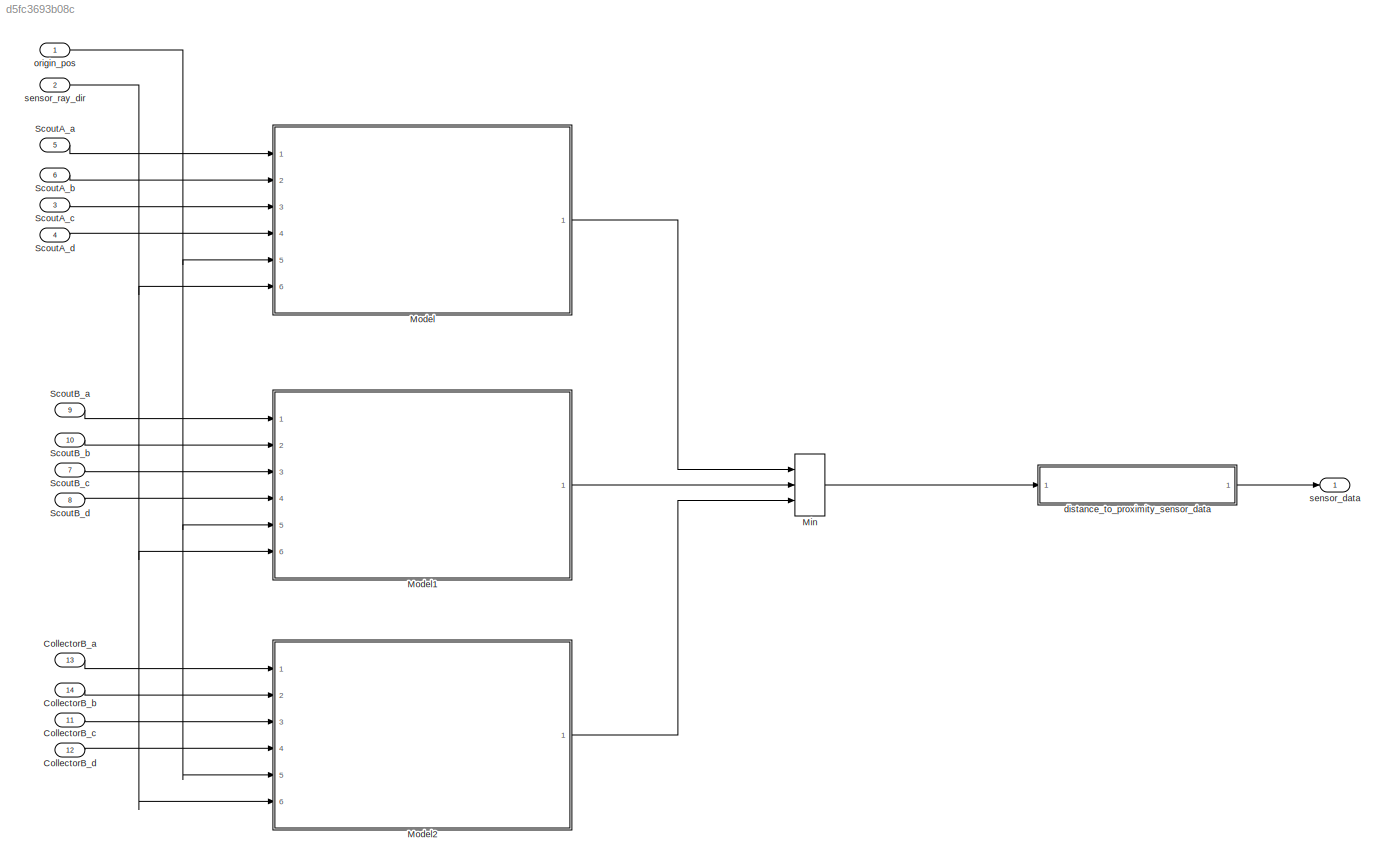
MODEL slx_d5fc3693b08c
KIND model
CONFIG AbsTol = auto
CONFIG EnableMultiTasking = off
CONFIG FixedStep = auto
CONFIG MaxStep = auto
CONFIG MinStep = auto
CONFIG RelTol = 1e-3
CONFIG SampleTimeConstraint = Unconstrained
CONFIG Solver = VariableStepAuto
CONFIG SolverName = VariableStepAuto
CONFIG StartTime = 0.0
CONFIG StopTime = 10.0
BLOCK [Inport] CollectorB_a
  IconDisplay = Port number
  Port = 13
BLOCK [Inport] CollectorB_b
  IconDisplay = Port number
  Port = 14
BLOCK [Inport] CollectorB_c
  IconDisplay = Port number
  Port = 11
BLOCK [Inport] CollectorB_d
  IconDisplay = Port number
  Port = 12
BLOCK [MinMax] Min
  InputSameDT = off
  Inputs = 3
  Ports = [3, 1]
  SaturateOnIntegerOverflow = off
  ZeroCross = off
BLOCK [ModelReference] Model
  ModelNameDialog = distance_to_bounding_box.slx
  ModelReferenceVersion = 1.2
  Ports = [6, 1]
BLOCK [ModelReference] Model1
  ModelNameDialog = distance_to_bounding_box.slx
  ModelReferenceVersion = 1.2
  Ports = [6, 1]
BLOCK [ModelReference] Model2
  ModelNameDialog = distance_to_bounding_box.slx
  ModelReferenceVersion = 1.2
  Ports = [6, 1]
BLOCK [Inport] ScoutA_a
  IconDisplay = Port number
  Port = 5
BLOCK [Inport] ScoutA_b
  IconDisplay = Port number
  Port = 6
BLOCK [Inport] ScoutA_c
  IconDisplay = Port number
  Port = 3
BLOCK [Inport] ScoutA_d
  IconDisplay = Port number
  Port = 4
BLOCK [Inport] ScoutB_a
  IconDisplay = Port number
  Port = 9
BLOCK [Inport] ScoutB_b
  IconDisplay = Port number
  Port = 10
BLOCK [Inport] ScoutB_c
  IconDisplay = Port number
  Port = 7
BLOCK [Inport] ScoutB_d
  IconDisplay = Port number
  Port = 8
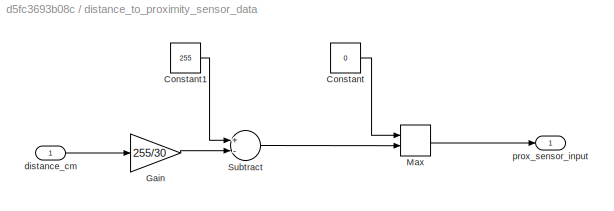
BLOCK [SubSystem] distance_to_proximity_sensor_data 
  Ports = [1, 1]
  RequestExecContextInheritance = off
BLOCK [Constant] distance_to_proximity_sensor_data /Constant
  Value = 0
BLOCK [Constant] distance_to_proximity_sensor_data /Constant1
  Value = 255
BLOCK [Gain] distance_to_proximity_sensor_data /Gain
  Gain = 255/30
  OutDataTypeStr = Inherit: Inherit via internal rule
  ParamDataTypeStr = Inherit: Inherit via internal rule
  SaturateOnIntegerOverflow = off
BLOCK [MinMax] distance_to_proximity_sensor_data /Max
  Function = max
  InputSameDT = off
  Inputs = 2
  Ports = [2, 1]
  SaturateOnIntegerOverflow = off
  ZeroCross = off
BLOCK [Sum] distance_to_proximity_sensor_data /Subtract
  InputSameDT = off
  Inputs = +-
  OutDataTypeStr = Inherit: Inherit via internal rule
  Ports = [2, 1]
  SaturateOnIntegerOverflow = off
BLOCK [Inport] distance_to_proximity_sensor_data /distance_cm
  IconDisplay = Port number
BLOCK [Outport] distance_to_proximity_sensor_data /prox_sensor_input 
  IconDisplay = Port number
BLOCK [Inport] origin_pos
  IconDisplay = Port number
BLOCK [Outport] sensor_data 
  IconDisplay = Port number
BLOCK [Inport] sensor_ray_dir
  IconDisplay = Port number
  Port = 2
LINE CollectorB_a:1 -> Model2:1
LINE CollectorB_b:1 -> Model2:2
LINE CollectorB_c:1 -> Model2:3
LINE CollectorB_d:1 -> Model2:4
LINE Min:1 -> distance_to_proximity_sensor_data :1
LINE Model1:1 -> Min:2
LINE Model2:1 -> Min:3
LINE Model:1 -> Min:1
LINE ScoutA_a:1 -> Model:1
LINE ScoutA_b:1 -> Model:2
LINE ScoutA_c:1 -> Model:3
LINE ScoutA_d:1 -> Model:4
LINE ScoutB_a:1 -> Model1:1
LINE ScoutB_b:1 -> Model1:2
LINE ScoutB_c:1 -> Model1:3
LINE ScoutB_d:1 -> Model1:4
LINE distance_to_proximity_sensor_data /Constant1:1 -> distance_to_proximity_sensor_data /Subtract:1
LINE distance_to_proximity_sensor_data /Constant:1 -> distance_to_proximity_sensor_data /Max:1
LINE distance_to_proximity_sensor_data /Gain:1 -> distance_to_proximity_sensor_data /Subtract:2
LINE distance_to_proximity_sensor_data /Max:1 -> distance_to_proximity_sensor_data /prox_sensor_input :1
LINE distance_to_proximity_sensor_data /Subtract:1 -> distance_to_proximity_sensor_data /Max:2
LINE distance_to_proximity_sensor_data /distance_cm:1 -> distance_to_proximity_sensor_data /Gain:1
LINE distance_to_proximity_sensor_data :1 -> sensor_data :1
NET origin_pos:1 -> Model1:5, Model2:5, Model:5
NET sensor_ray_dir:1 -> Model1:6, Model2:6, Model:6
note: NET lines group one-source signal fan-out (src -> all destinations, sorted); 1:1 wires keep LINE
